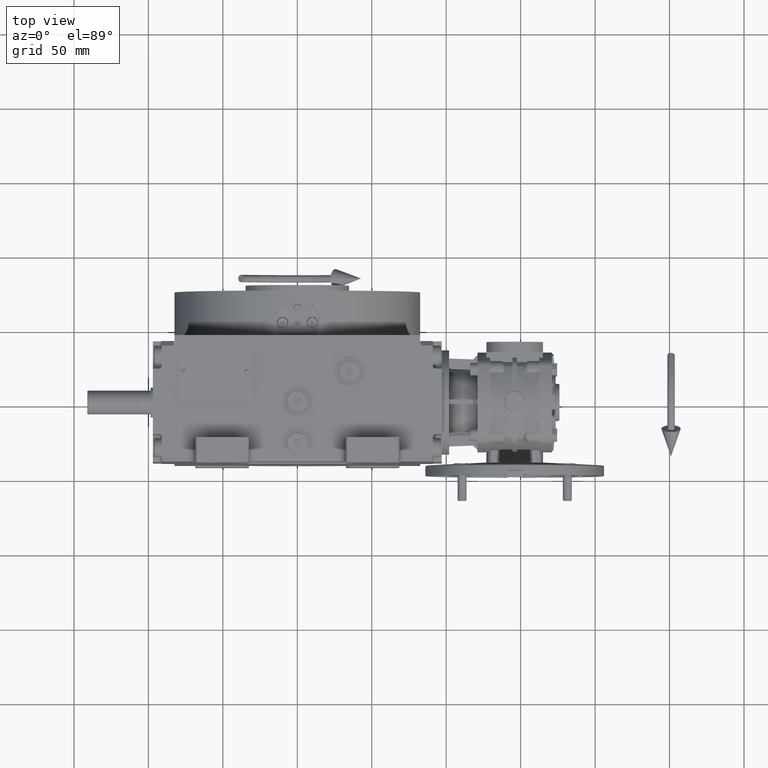
[diagram: clean part render]
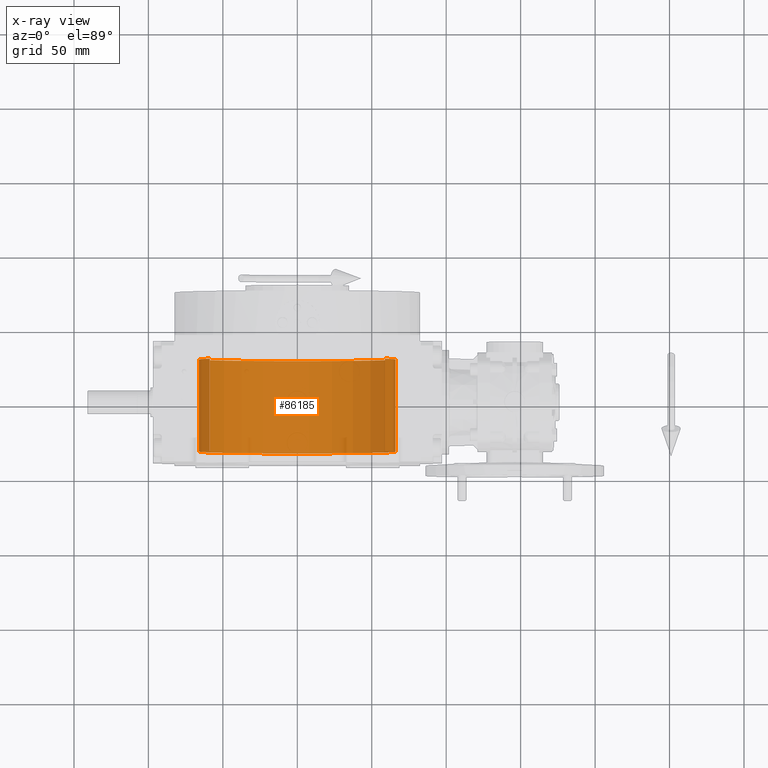
[diagram: x-ray — body ghosted, one internal face saturated and labeled with its STEP entity id]
A machine part, top view, then the same camera in x-ray: the body is ghosted and one INTERNAL B-rep face — a face not visible from any outside direction — is saturated and labeled: STEP entity #86185.
In plain terms, the highlighted cylindrical surface (partial cylindrical patch) has radius 66 mm, axis along (0, 1, 0).
Its self-contained STEP definition (entity closure, byte-faithful):
#786 = CARTESIAN_POINT ( 'NONE',  ( 58.78775382679628336, 116.2838171160283594, 30.00000000000000000 ) ) ;
#2318 = AXIS2_PLACEMENT_3D ( 'NONE', #59119, #66525, #95701 ) ;
#3162 = DIRECTION ( 'NONE',  ( -0.000000000000000000, 1.000000000000000000, -0.000000000000000000 ) ) ;
#6447 = CARTESIAN_POINT ( 'NONE',  ( -58.78775382679628336, 30.00000000000000000, 30.00000000000000000 ) ) ;
#6716 = DIRECTION ( 'NONE',  ( -0.000000000000000000, 1.000000000000000000, -0.000000000000000000 ) ) ;
#9593 = CYLINDRICAL_SURFACE ( 'NONE', #71904, 66.00000000000000000 ) ;
#11052 = CARTESIAN_POINT ( 'NONE',  ( 0.000000000000000000, 116.2838171160283594, 0.000000000000000000 ) ) ;
#13250 = EDGE_CURVE ( 'NONE', #73582, #78609, #23036, .T. ) ;
#17552 = DIRECTION ( 'NONE',  ( 0.000000000000000000, 0.000000000000000000, 1.000000000000000000 ) ) ;
#18015 = VECTOR ( 'NONE', #6716, 1000.000000000000000 ) ;
#18453 = CARTESIAN_POINT ( 'NONE',  ( 58.78775382679628336, 30.00000000000000000, 30.00000000000000000 ) ) ;
#18531 = CARTESIAN_POINT ( 'NONE',  ( 0.000000000000000000, -32.00000000000000000, 0.000000000000000000 ) ) ;
#23036 = LINE ( 'NONE', #786, #18015 ) ;
#25455 = DIRECTION ( 'NONE',  ( -0.000000000000000000, 1.000000000000000000, -0.000000000000000000 ) ) ;
#26187 = ORIENTED_EDGE ( 'NONE', *, *, #50646, .T. ) ;
#31102 = CARTESIAN_POINT ( 'NONE',  ( -58.78775382679628336, -32.00000000000000000, 30.00000000000000000 ) ) ;
#33321 = DIRECTION ( 'NONE',  ( 0.000000000000000000, 0.000000000000000000, 1.000000000000000000 ) ) ;
#34338 = CARTESIAN_POINT ( 'NONE',  ( -58.78775382679628336, 116.2838171160283594, 30.00000000000000000 ) ) ;
#43534 = ORIENTED_EDGE ( 'NONE', *, *, #13250, .T. ) ;
#43705 = DIRECTION ( 'NONE',  ( 0.000000000000000000, -1.000000000000000000, 0.000000000000000000 ) ) ;
#50646 = EDGE_CURVE ( 'NONE', #90760, #84197, #81233, .T. ) ;
#55329 = AXIS2_PLACEMENT_3D ( 'NONE', #18531, #25455, #17552 ) ;
#56028 = CIRCLE ( 'NONE', #2318, 66.00000000000000000 ) ;
#56887 = CIRCLE ( 'NONE', #55329, 66.00000000000000000 ) ;
#59119 = CARTESIAN_POINT ( 'NONE',  ( 0.000000000000000000, 30.00000000000000000, 0.000000000000000000 ) ) ;
#59184 = ORIENTED_EDGE ( 'NONE', *, *, #87180, .T. ) ;
#64031 = CARTESIAN_POINT ( 'NONE',  ( 58.78775382679628336, -32.00000000000000000, 30.00000000000000000 ) ) ;
#66525 = DIRECTION ( 'NONE',  ( -0.000000000000000000, 1.000000000000000000, -0.000000000000000000 ) ) ;
#71904 = AXIS2_PLACEMENT_3D ( 'NONE', #11052, #3162, #33321 ) ;
#73582 = VERTEX_POINT ( 'NONE', #64031 ) ;
#77785 = FACE_OUTER_BOUND ( 'NONE', #95657, .T. ) ;
#78609 = VERTEX_POINT ( 'NONE', #18453 ) ;
#81233 = LINE ( 'NONE', #34338, #91189 ) ;
#84197 = VERTEX_POINT ( 'NONE', #31102 ) ;
#86185 = ADVANCED_FACE ( 'NONE', ( #77785 ), #9593, .F. ) ;
#87180 = EDGE_CURVE ( 'NONE', #78609, #90760, #56028, .T. ) ;
#88713 = ORIENTED_EDGE ( 'NONE', *, *, #97714, .F. ) ;
#90760 = VERTEX_POINT ( 'NONE', #6447 ) ;
#91189 = VECTOR ( 'NONE', #43705, 1000.000000000000000 ) ;
#95657 = EDGE_LOOP ( 'NONE', ( #26187, #88713, #43534, #59184 ) ) ;
#95701 = DIRECTION ( 'NONE',  ( 0.000000000000000000, 0.000000000000000000, 1.000000000000000000 ) ) ;
#97714 = EDGE_CURVE ( 'NONE', #73582, #84197, #56887, .T. ) ;